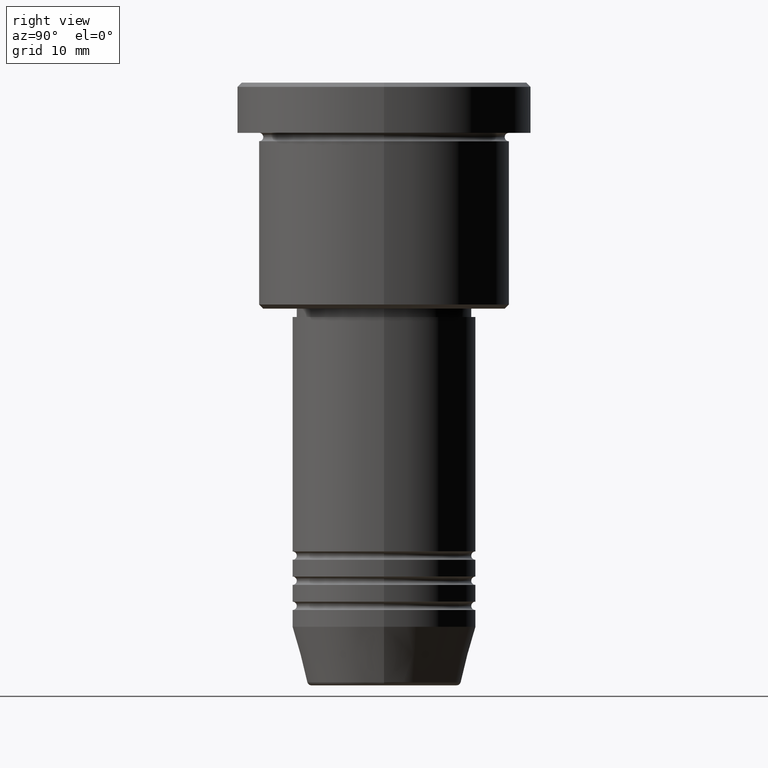
[diagram: clean part render]
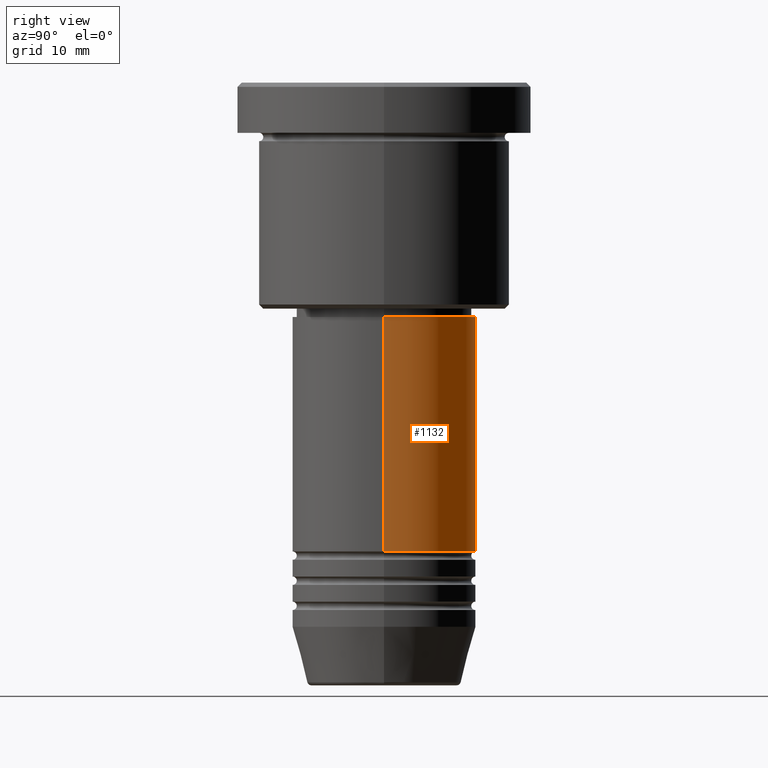
[diagram: same view with one face highlighted and labeled with its STEP entity id]
A machine part, right view. The second image highlights one B-rep face of the part: STEP entity #1132.
In plain terms, the highlighted cylindrical surface (partial cylindrical patch) has radius 11 mm, axis along (-0, -0, 1).
Its self-contained STEP definition (entity closure, byte-faithful):
#5 = DIRECTION ( 'NONE',  ( -0.000000000000000000, -0.000000000000000000, 1.000000000000000000 ) ) ;
#29 = ORIENTED_EDGE ( 'NONE', *, *, #691, .T. ) ;
#36 = CIRCLE ( 'NONE', #354, 11.00000000000000000 ) ;
#47 = VERTEX_POINT ( 'NONE', #597 ) ;
#84 = LINE ( 'NONE', #365, #515 ) ;
#160 = CARTESIAN_POINT ( 'NONE',  ( -11.00000000000000000, 1.347111479062088405E-15, -28.00000000000000355 ) ) ;
#169 = DIRECTION ( 'NONE',  ( -0.000000000000000000, -0.000000000000000000, 1.000000000000000000 ) ) ;
#197 = CYLINDRICAL_SURFACE ( 'NONE', #431, 11.00000000000000000 ) ;
#256 = ORIENTED_EDGE ( 'NONE', *, *, #257, .F. ) ;
#257 = EDGE_CURVE ( 'NONE', #47, #1145, #84, .T. ) ;
#267 = DIRECTION ( 'NONE',  ( -0.000000000000000000, -0.000000000000000000, 1.000000000000000000 ) ) ;
#283 = DIRECTION ( 'NONE',  ( -0.000000000000000000, -0.000000000000000000, 1.000000000000000000 ) ) ;
#354 = AXIS2_PLACEMENT_3D ( 'NONE', #1175, #169, #825 ) ;
#365 = CARTESIAN_POINT ( 'NONE',  ( 11.00000000000000000, 0.000000000000000000, 0.000000000000000000 ) ) ;
#407 = AXIS2_PLACEMENT_3D ( 'NONE', #583, #878, #698 ) ;
#410 = VECTOR ( 'NONE', #5, 1000.000000000000000 ) ;
#431 = AXIS2_PLACEMENT_3D ( 'NONE', #459, #267, #733 ) ;
#443 = ORIENTED_EDGE ( 'NONE', *, *, #899, .T. ) ;
#459 = CARTESIAN_POINT ( 'NONE',  ( 0.000000000000000000, 0.000000000000000000, 0.000000000000000000 ) ) ;
#515 = VECTOR ( 'NONE', #283, 1000.000000000000000 ) ;
#583 = CARTESIAN_POINT ( 'NONE',  ( 0.000000000000000000, 0.000000000000000000, -55.99999999999997868 ) ) ;
#597 = CARTESIAN_POINT ( 'NONE',  ( 11.00000000000000000, 0.000000000000000000, -55.99999999999997868 ) ) ;
#614 = EDGE_LOOP ( 'NONE', ( #29, #443, #738, #256 ) ) ;
#691 = EDGE_CURVE ( 'NONE', #47, #1118, #1028, .T. ) ;
#698 = DIRECTION ( 'NONE',  ( 1.000000000000000000, 0.000000000000000000, 0.000000000000000000 ) ) ;
#733 = DIRECTION ( 'NONE',  ( 1.000000000000000000, 0.000000000000000000, 0.000000000000000000 ) ) ;
#738 = ORIENTED_EDGE ( 'NONE', *, *, #863, .F. ) ;
#781 = VERTEX_POINT ( 'NONE', #160 ) ;
#821 = CARTESIAN_POINT ( 'NONE',  ( 11.00000000000000000, 0.000000000000000000, -28.00000000000000355 ) ) ;
#825 = DIRECTION ( 'NONE',  ( 1.000000000000000000, 0.000000000000000000, 0.000000000000000000 ) ) ;
#863 = EDGE_CURVE ( 'NONE', #1145, #781, #36, .T. ) ;
#878 = DIRECTION ( 'NONE',  ( -0.000000000000000000, -0.000000000000000000, 1.000000000000000000 ) ) ;
#899 = EDGE_CURVE ( 'NONE', #1118, #781, #1167, .T. ) ;
#985 = CARTESIAN_POINT ( 'NONE',  ( -11.00000000000000000, 1.347111479062088405E-15, 0.000000000000000000 ) ) ;
#993 = FACE_OUTER_BOUND ( 'NONE', #614, .T. ) ;
#1028 = CIRCLE ( 'NONE', #407, 11.00000000000000000 ) ;
#1091 = CARTESIAN_POINT ( 'NONE',  ( -11.00000000000000000, 1.347111479062088405E-15, -55.99999999999997868 ) ) ;
#1118 = VERTEX_POINT ( 'NONE', #1091 ) ;
#1132 = ADVANCED_FACE ( 'NONE', ( #993 ), #197, .T. ) ;
#1145 = VERTEX_POINT ( 'NONE', #821 ) ;
#1167 = LINE ( 'NONE', #985, #410 ) ;
#1175 = CARTESIAN_POINT ( 'NONE',  ( 0.000000000000000000, 0.000000000000000000, -28.00000000000000355 ) ) ;